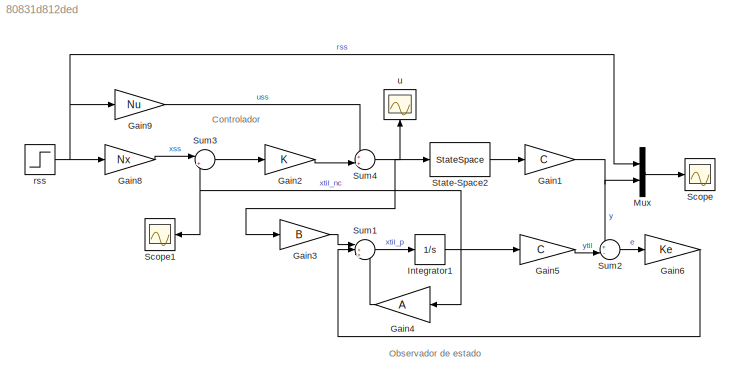
MODEL slx_80831d812ded
KIND model
CONFIG AbsTol = auto
CONFIG EnableMultiTasking = off
CONFIG FixedStep = auto
CONFIG MaxStep = auto
CONFIG MinStep = auto
CONFIG RelTol = 1e-3
CONFIG SampleTimeConstraint = Unconstrained
CONFIG SolverName = VariableStepAuto
CONFIG StartTime = 0.0
CONFIG StopTime = 100.0
BLOCK [Gain] Gain1
  Gain = C
  Multiplication = Matrix(K*u)
BLOCK [Gain] Gain2
  Gain = K
  Multiplication = Matrix(K*u)
BLOCK [Gain] Gain3
  Gain = B
  Multiplication = Matrix(K*u)
BLOCK [Gain] Gain4
  Gain = A
  Multiplication = Matrix(K*u)
  NameLocation = top
BLOCK [Gain] Gain5
  Gain = C
  Multiplication = Matrix(K*u)
BLOCK [Gain] Gain6
  Gain = Ke
  Multiplication = Matrix(K*u)
BLOCK [Gain] Gain8
  Gain = Nx
BLOCK [Gain] Gain9
  Gain = Nu
BLOCK [Integrator] Integrator1
  InitialCondition = [1;1]
BLOCK [Mux] Mux
  DisplayOption = bar
  Inputs = 2
BLOCK [Scope] Scope
  Floating = off
  NumInputPorts = 1
  ScopeSpecificationString = Simulink.scopes.TimeScopeBlockCfg('CurrentConfiguration', extmgr.ConfigurationSet(extmgr.Configuration('Core','General UI',true,'DisplayFullSourceName',false,'ShowMainToolbar',true,'FigureColor',[0 0 0]),extmgr.Configuration('Sources','WiredSimulink',true,'DataLogging',false,'DataLoggingVariableName','ScopeData','DataLoggingLimitDataPoints',false,'DataLoggingMaxPoints','5000','DataLoggingDecimateD...<+2257ch>
BLOCK [Scope] Scope1
  Floating = off
  NameLocation = top
  NumInputPorts = 1
  ScopeSpecificationString = Simulink.scopes.TimeScopeBlockCfg('CurrentConfiguration', extmgr.ConfigurationSet(extmgr.Configuration('Core','General UI',true,'DisplayFullSourceName',false,'ShowMainToolbar',true),extmgr.Configuration('Sources','WiredSimulink',true,'DataLogging',false,'DataLoggingVariableName','ScopeData2','DataLoggingLimitDataPoints',false,'DataLoggingMaxPoints','5000','DataLoggingDecimateData',false,'DataLoggi...<+1993ch>
BLOCK [StateSpace] State-Space2
  A = A
  B = B
  C = eye(2)
  D = zeros(2,1)
  InitialCondition = [0;0]
BLOCK [Sum] Sum1
  Inputs = |+++
BLOCK [Sum] Sum2
  Inputs = +-|
BLOCK [Sum] Sum3
  Inputs = |+-
BLOCK [Sum] Sum4
  Inputs = ++|
BLOCK [Step] rss
  After = 0.8
  SampleTime = 0
  Time = 15
BLOCK [Scope] u
  Floating = off
  NameLocation = right
  NumInputPorts = 1
  ScopeSpecificationString = Simulink.scopes.TimeScopeBlockCfg('CurrentConfiguration', extmgr.ConfigurationSet(extmgr.Configuration('Core','General UI',true,'DisplayFullSourceName',false,'ShowMainToolbar',true,'FigureColor','[1 1 1]'),extmgr.Configuration('Sources','WiredSimulink',true,'DataLogging',false,'DataLoggingVariableName','ScopeData1','DataLoggingLimitDataPoints',false,'DataLoggingMaxPoints','5000','DataLoggingDecima...<+1992ch>
ANNOTATION (root): Observador de estado
ANNOTATION (root): Controlador
NET Gain1:1 -> Mux:2, Sum2:1
LINE Gain2:1 -> Sum4:2
LINE Gain3:1 -> Sum1:1
LINE Gain4:1 -> Sum1:3
LINE Gain5:1 -> Sum2:2
LINE Gain6:1 -> Sum1:2
LINE Gain8:1 -> Sum3:1
LINE Gain9:1 -> Sum4:1
NET Integrator1:1 -> Gain4:1, Gain5:1, Scope1:1, Sum3:2
LINE Mux:1 -> Scope:1
LINE State-Space2:1 -> Gain1:1
LINE Sum1:1 -> Integrator1:1
LINE Sum2:1 -> Gain6:1
LINE Sum3:1 -> Gain2:1
NET Sum4:1 -> Gain3:1, State-Space2:1, u:1
NET rss:1 -> Gain8:1, Gain9:1, Mux:1
note: NET lines group one-source signal fan-out (src -> all destinations, sorted); 1:1 wires keep LINE
